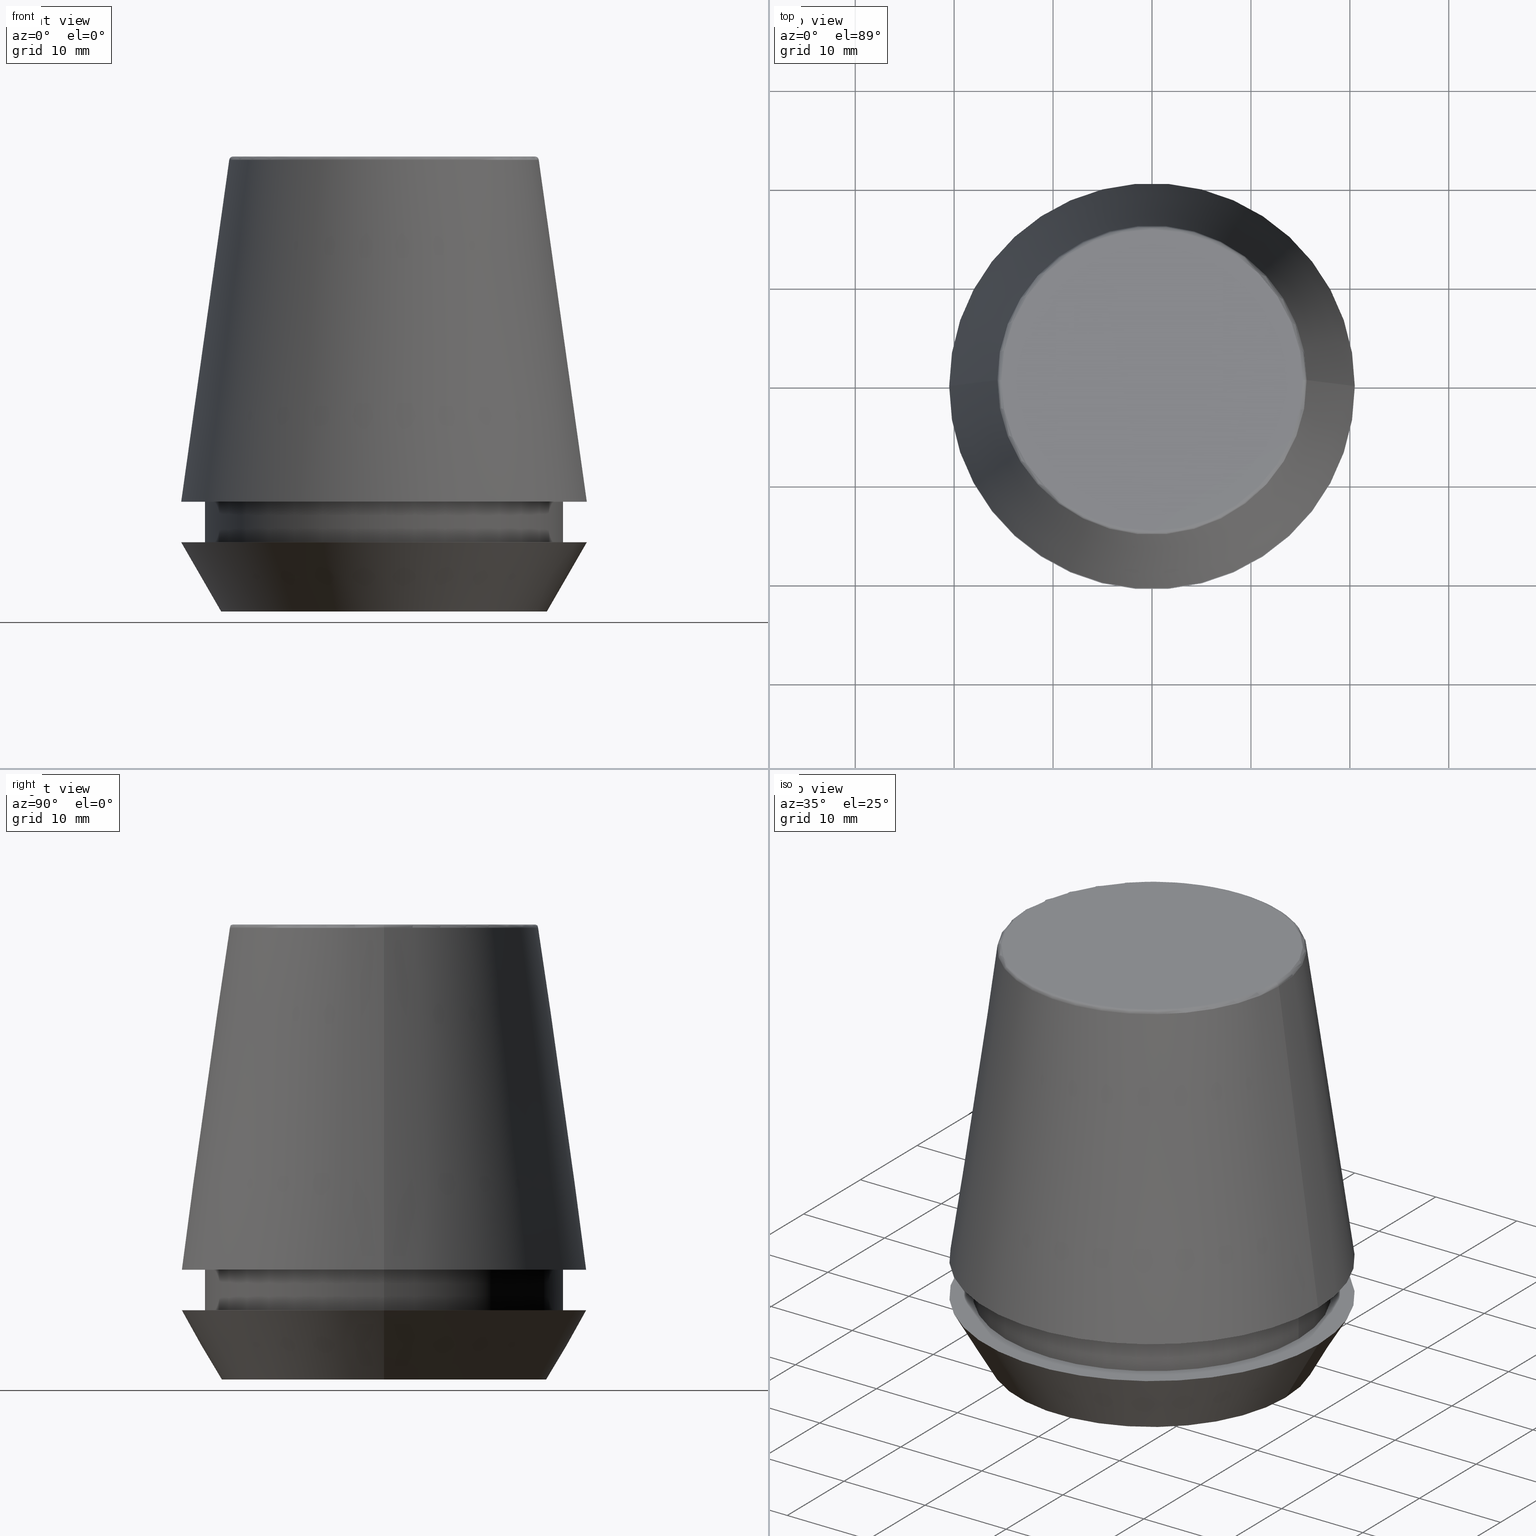
[diagram: canonical four-view strip — front | top / right | iso, engineering-drawing reading convention]
A machine part, canonical four-view strip (front | top / right | iso — engineering-drawing reading convention). The complete STEP part file that produces these views, byte-faithful:
ISO-10303-21;
HEADER;
FILE_DESCRIPTION (( 'STEP AP203' ),
    '1' );
FILE_NAME ('TAP COLLET ER 40G 4.5 X 3.4.STEP',
    '2019-04-10T03:21:59',
    ( '' ),
    ( '' ),
    'SwSTEP 2.0',
    'SolidWorks 2014',
    '' );
FILE_SCHEMA (( 'CONFIG_CONTROL_DESIGN' ));
ENDSEC;

DATA;
#1 =( NAMED_UNIT ( * ) PLANE_ANGLE_UNIT ( ) SI_UNIT ( $, .RADIAN. ) );
#2 = DIRECTION ( 'NONE',  ( -0.0000000000000000000, -0.0000000000000000000, 1.000000000000000000 ) ) ;
#3 = ORIENTED_EDGE ( 'NONE', *, *, #130, .F. ) ;
#4 = APPROVAL_STATUS ( 'not_yet_approved' ) ;
#5 = EDGE_LOOP ( 'NONE', ( #384, #336, #15, #3 ) ) ;
#6 = ORIENTED_EDGE ( 'NONE', *, *, #225, .F. ) ;
#7 = PERSON_AND_ORGANIZATION_ROLE ( 'classification_officer' ) ;
#8 = EDGE_CURVE ( 'NONE', #112, #253, #162, .T. ) ;
#9 = AXIS2_PLACEMENT_3D ( 'NONE', #222, #283, #252 ) ;
#10 = PERSON_AND_ORGANIZATION ( #307, #350 ) ;
#11 = ORIENTED_EDGE ( 'NONE', *, *, #182, .F. ) ;
#12 = FACE_OUTER_BOUND ( 'NONE', #85, .T. ) ;
#13 = ORIENTED_EDGE ( 'NONE', *, *, #72, .F. ) ;
#14 = AXIS2_PLACEMENT_3D ( 'NONE', #184, #382, #358 ) ;
#15 = ORIENTED_EDGE ( 'NONE', *, *, #333, .T. ) ;
#16 = DIRECTION ( 'NONE',  ( -0.1391731009600587200, 0.0000000000000000000, -0.9902680687415712500 ) ) ;
#17 = ADVANCED_FACE ( 'NONE', ( #167 ), #302, .T. ) ;
#18 = VERTEX_POINT ( 'NONE', #40 ) ;
#19 = AXIS2_PLACEMENT_3D ( 'NONE', #52, #351, #23 ) ;
#20 = ORIENTED_EDGE ( 'NONE', *, *, #58, .T. ) ;
#21 = CARTESIAN_POINT ( 'NONE',  ( -16.45854811567268100, 2.015590826847124800E-015, 0.0000000000000000000 ) ) ;
#22 = ADVANCED_FACE ( 'NONE', ( #27 ), #246, .T. ) ;
#23 = DIRECTION ( 'NONE',  ( 0.0000000000000000000, 0.0000000000000000000, -1.000000000000000000 ) ) ;
#24 = CARTESIAN_POINT ( 'NONE',  ( -15.24773554530077600, 1.891563625393435400E-015, 46.00000000000000000 ) ) ;
#25 = UNCERTAINTY_MEASURE_WITH_UNIT (LENGTH_MEASURE( 1.000000000000000100E-005 ), #30, 'distance_accuracy_value', 'NONE');
#26 = DESIGN_CONTEXT ( 'detailed design', #62, 'design' ) ;
#27 = FACE_OUTER_BOUND ( 'NONE', #341, .T. ) ;
#28 = EDGE_LOOP ( 'NONE', ( #94, #227 ) ) ;
#29 = DIRECTION ( 'NONE',  ( 1.000000000000000000, 0.0000000000000000000, 0.0000000000000000000 ) ) ;
#30 =( LENGTH_UNIT ( ) NAMED_UNIT ( * ) SI_UNIT ( .MILLI., .METRE. ) );
#31 = CIRCLE ( 'NONE', #19, 0.3999999999999975800 ) ;
#32 = AXIS2_PLACEMENT_3D ( 'NONE', #133, #315, #101 ) ;
#33 = PERSON_AND_ORGANIZATION_ROLE ( 'creator' ) ;
#34 = FACE_OUTER_BOUND ( 'NONE', #63, .T. ) ;
#35 = COORDINATED_UNIVERSAL_TIME_OFFSET ( 5, 30, .AHEAD. ) ;
#36 = LINE ( 'NONE', #77, #141 ) ;
#37 = AXIS2_PLACEMENT_3D ( 'NONE', #310, #198, #135 ) ;
#38 = FACE_OUTER_BOUND ( 'NONE', #5, .T. ) ;
#39 = VECTOR ( 'NONE', #233, 1000.000000000000000 ) ;
#40 = CARTESIAN_POINT ( 'NONE',  ( 15.64384277279740400, 2.213191991290356800E-015, 45.65566924038402900 ) ) ;
#41 = PERSON_AND_ORGANIZATION ( #307, #350 ) ;
#42 = DIRECTION ( 'NONE',  ( -1.000000000000000000, 0.0000000000000000000, -0.0000000000000000000 ) ) ;
#43 = AXIS2_PLACEMENT_3D ( 'NONE', #231, #54, #60 ) ;
#44 = DIRECTION ( 'NONE',  ( 0.0000000000000000000, 0.0000000000000000000, -1.000000000000000000 ) ) ;
#45 = DIRECTION ( 'NONE',  ( 1.000000000000000000, 0.0000000000000000000, 0.0000000000000000000 ) ) ;
#46 = DIRECTION ( 'NONE',  ( -0.0000000000000000000, -0.0000000000000000000, 1.000000000000000000 ) ) ;
#47 = DIRECTION ( 'NONE',  ( 1.000000000000000000, 0.0000000000000000000, 0.0000000000000000000 ) ) ;
#48 = FACE_BOUND ( 'NONE', #292, .T. ) ;
#49 = CARTESIAN_POINT ( 'NONE',  ( 0.0000000000000000000, 20.50032537154048700, 11.09999999999999800 ) ) ;
#50 = CARTESIAN_POINT ( 'NONE',  ( 18.10000000000000100, 0.0000000000000000000, 6.999999999999999100 ) ) ;
#51 = EDGE_CURVE ( 'NONE', #305, #273, #83, .T. ) ;
#52 = CARTESIAN_POINT ( 'NONE',  ( 15.24773554530077600, 0.0000000000000000000, 45.60000000000000100 ) ) ;
#53 = PRODUCT_DEFINITION_FORMATION_WITH_SPECIFIED_SOURCE ( 'ANY', '', #242, .NOT_KNOWN. ) ;
#54 = DIRECTION ( 'NONE',  ( -0.0000000000000000000, -0.0000000000000000000, 1.000000000000000000 ) ) ;
#55 = PLANE ( 'NONE',  #230 ) ;
#56 = CIRCLE ( 'NONE', #98, 18.10000000000000500 ) ;
#57 = EDGE_LOOP ( 'NONE', ( #154, #136, #241, #6 ) ) ;
#58 = EDGE_CURVE ( 'NONE', #305, #304, #228, .T. ) ;
#59 = APPROVAL ( #265, 'UNSPECIFIED' ) ;
#60 = DIRECTION ( 'NONE',  ( 1.000000000000000000, 0.0000000000000000000, 0.0000000000000000000 ) ) ;
#61 = EDGE_LOOP ( 'NONE', ( #205, #74, #68, #179 ) ) ;
#62 = APPLICATION_CONTEXT ( 'configuration controlled 3d designs of mechanical parts and assemblies' ) ;
#63 = EDGE_LOOP ( 'NONE', ( #322, #239 ) ) ;
#64 = PRODUCT_DEFINITION ( 'UNKNOWN', '', #53, #26 ) ;
#65 = CIRCLE ( 'NONE', #211, 16.45854811567268100 ) ;
#66 = FACE_BOUND ( 'NONE', #87, .T. ) ;
#67 = CIRCLE ( 'NONE', #104, 15.64384277279740400 ) ;
#68 = ORIENTED_EDGE ( 'NONE', *, *, #72, .T. ) ;
#69 = VECTOR ( 'NONE', #190, 1000.000000000000000 ) ;
#70 = CARTESIAN_POINT ( 'NONE',  ( 0.0000000000000000000, 0.0000000000000000000, 45.60000000000000100 ) ) ;
#71 = CARTESIAN_POINT ( 'NONE',  ( 0.0000000000000000000, 0.0000000000000000000, 11.09999999999999800 ) ) ;
#72 = EDGE_CURVE ( 'NONE', #96, #240, #295, .T. ) ;
#73 = CARTESIAN_POINT ( 'NONE',  ( 0.0000000000000000000, 0.0000000000000000000, 45.60000000000000100 ) ) ;
#74 = ORIENTED_EDGE ( 'NONE', *, *, #369, .T. ) ;
#75 = APPROVAL_DATE_TIME ( #166, #226 ) ;
#76 = ORIENTED_EDGE ( 'NONE', *, *, #114, .T. ) ;
#77 = CARTESIAN_POINT ( 'NONE',  ( 18.10000000000000500, 0.0000000000000000000, 46.00000000000000000 ) ) ;
#78 = CC_DESIGN_APPROVAL ( #106, ( #64 ) ) ;
#79 = DATE_AND_TIME ( #261, #175 ) ;
#80 = ADVANCED_FACE ( 'NONE', ( #38 ), #219, .T. ) ;
#81 = EDGE_CURVE ( 'NONE', #240, #96, #187, .T. ) ;
#82 = DIRECTION ( 'NONE',  ( 1.000000000000000000, 0.0000000000000000000, 0.0000000000000000000 ) ) ;
#83 = LINE ( 'NONE', #21, #69 ) ;
#84 = CARTESIAN_POINT ( 'NONE',  ( -18.10000000000000500, 2.216610706456710000E-015, 11.09999999999999800 ) ) ;
#85 = EDGE_LOOP ( 'NONE', ( #238, #151 ) ) ;
#86 = DIRECTION ( 'NONE',  ( 1.000000000000000000, 0.0000000000000000000, 0.0000000000000000000 ) ) ;
#87 = EDGE_LOOP ( 'NONE', ( #11, #93 ) ) ;
#88 = DATE_TIME_ROLE ( 'classification_date' ) ;
#89 = ADVANCED_BREP_SHAPE_REPRESENTATION ( 'TAP COLLET ER 40G 4.5 X 3.4', ( #149, #152 ), #326 ) ;
#90 = CALENDAR_DATE ( 2019, 10, 4 ) ;
#91 = AXIS2_PLACEMENT_3D ( 'NONE', #142, #110, #197 ) ;
#92 = CARTESIAN_POINT ( 'NONE',  ( -15.64384277279740400, 0.0000000000000000000, 45.65566924038402900 ) ) ;
#93 = ORIENTED_EDGE ( 'NONE', *, *, #113, .F. ) ;
#94 = ORIENTED_EDGE ( 'NONE', *, *, #164, .F. ) ;
#95 = ORIENTED_EDGE ( 'NONE', *, *, #159, .F. ) ;
#96 = VERTEX_POINT ( 'NONE', #132 ) ;
#97 = DIRECTION ( 'NONE',  ( -0.0000000000000000000, -0.0000000000000000000, 1.000000000000000000 ) ) ;
#98 = AXIS2_PLACEMENT_3D ( 'NONE', #103, #138, #317 ) ;
#99 = COORDINATED_UNIVERSAL_TIME_OFFSET ( 5, 30, .AHEAD. ) ;
#100 = DIRECTION ( 'NONE',  ( -0.0000000000000000000, -0.0000000000000000000, 1.000000000000000000 ) ) ;
#101 = DIRECTION ( 'NONE',  ( 1.000000000000000000, 0.0000000000000000000, 0.0000000000000000000 ) ) ;
#102 = ADVANCED_FACE ( 'NONE', ( #177 ), #327, .T. ) ;
#103 = CARTESIAN_POINT ( 'NONE',  ( 0.0000000000000000000, 0.0000000000000000000, 11.09999999999999800 ) ) ;
#104 = AXIS2_PLACEMENT_3D ( 'NONE', #249, #220, #82 ) ;
#105 = ORIENTED_EDGE ( 'NONE', *, *, #8, .F. ) ;
#106 = APPROVAL ( #4, 'UNSPECIFIED' ) ;
#107 = CARTESIAN_POINT ( 'NONE',  ( 16.45854811567268100, 0.0000000000000000000, 0.0000000000000000000 ) ) ;
#108 = FACE_OUTER_BOUND ( 'NONE', #181, .T. ) ;
#109 = CALENDAR_DATE ( 2019, 10, 4 ) ;
#110 = DIRECTION ( 'NONE',  ( -0.0000000000000000000, -0.0000000000000000000, 1.000000000000000000 ) ) ;
#111 = CIRCLE ( 'NONE', #236, 18.10000000000000500 ) ;
#112 = VERTEX_POINT ( 'NONE', #216 ) ;
#113 = EDGE_CURVE ( 'NONE', #255, #191, #160, .T. ) ;
#114 = EDGE_CURVE ( 'NONE', #224, #240, #357, .T. ) ;
#115 = ADVANCED_FACE ( 'NONE', ( #66, #12 ), #311, .F. ) ;
#116 = DIRECTION ( 'NONE',  ( -0.0000000000000000000, -0.0000000000000000000, 1.000000000000000000 ) ) ;
#117 = EDGE_LOOP ( 'NONE', ( #214, #270, #95, #173 ) ) ;
#118 = LINE ( 'NONE', #139, #372 ) ;
#119 = DIRECTION ( 'NONE',  ( 1.000000000000000000, 0.0000000000000000000, 0.0000000000000000000 ) ) ;
#120 = CARTESIAN_POINT ( 'NONE',  ( 0.0000000000000000000, 0.0000000000000000000, 0.0000000000000000000 ) ) ;
#121 = APPROVAL_ROLE ( '' ) ;
#122 = FACE_OUTER_BOUND ( 'NONE', #28, .T. ) ;
#123 = COORDINATED_UNIVERSAL_TIME_OFFSET ( 5, 30, .AHEAD. ) ;
#124 = DIRECTION ( 'NONE',  ( -0.0000000000000000000, -0.0000000000000000000, 1.000000000000000000 ) ) ;
#125 = DIRECTION ( 'NONE',  ( -0.0000000000000000000, -0.0000000000000000000, 1.000000000000000000 ) ) ;
#126 = CC_DESIGN_PERSON_AND_ORGANIZATION_ASSIGNMENT ( #356, #33, ( #64 ) ) ;
#127 = CIRCLE ( 'NONE', #272, 18.10000000000000100 ) ;
#128 = DIRECTION ( 'NONE',  ( -0.0000000000000000000, -0.0000000000000000000, 1.000000000000000000 ) ) ;
#129 = ORIENTED_EDGE ( 'NONE', *, *, #137, .T. ) ;
#130 = EDGE_CURVE ( 'NONE', #290, #306, #111, .T. ) ;
#131 = DIRECTION ( 'NONE',  ( 1.000000000000000000, 0.0000000000000000000, 0.0000000000000000000 ) ) ;
#132 = CARTESIAN_POINT ( 'NONE',  ( 20.50032537154048700, 2.510565784773633700E-015, 11.09999999999999800 ) ) ;
#133 = CARTESIAN_POINT ( 'NONE',  ( 0.0000000000000000000, 0.0000000000000000000, 0.0000000000000000000 ) ) ;
#134 = AXIS2_PLACEMENT_3D ( 'NONE', #215, #44, #316 ) ;
#135 = DIRECTION ( 'NONE',  ( -1.000000000000000000, 0.0000000000000000000, 0.0000000000000000000 ) ) ;
#136 = ORIENTED_EDGE ( 'NONE', *, *, #210, .T. ) ;
#137 = EDGE_CURVE ( 'NONE', #18, #224, #67, .T. ) ;
#138 = DIRECTION ( 'NONE',  ( -0.0000000000000000000, -0.0000000000000000000, 1.000000000000000000 ) ) ;
#139 = CARTESIAN_POINT ( 'NONE',  ( 20.50032537154048700, 2.510565784773633700E-015, 11.09999999999999800 ) ) ;
#140 = DIRECTION ( 'NONE',  ( -0.0000000000000000000, -0.0000000000000000000, 1.000000000000000000 ) ) ;
#141 = VECTOR ( 'NONE', #291, 1000.000000000000000 ) ;
#142 = CARTESIAN_POINT ( 'NONE',  ( 0.0000000000000000000, 0.0000000000000000000, 46.00000000000000000 ) ) ;
#143 = EDGE_LOOP ( 'NONE', ( #129, #163, #105, #148 ) ) ;
#144 = ORIENTED_EDGE ( 'NONE', *, *, #130, .T. ) ;
#145 = DATE_TIME_ROLE ( 'creation_date' ) ;
#146 = DIRECTION ( 'NONE',  ( 0.0000000000000000000, -0.0000000000000000000, 1.000000000000000000 ) ) ;
#147 = DIRECTION ( 'NONE',  ( 1.000000000000000000, 0.0000000000000000000, 0.0000000000000000000 ) ) ;
#148 = ORIENTED_EDGE ( 'NONE', *, *, #344, .F. ) ;
#149 = MANIFOLD_SOLID_BREP ( 'Revolve1', #308 ) ;
#150 = SECURITY_CLASSIFICATION_LEVEL ( 'unclassified' ) ;
#151 = ORIENTED_EDGE ( 'NONE', *, *, #303, .T. ) ;
#152 = AXIS2_PLACEMENT_3D ( 'NONE', #359, #348, #147 ) ;
#153 = DIRECTION ( 'NONE',  ( 1.000000000000000000, 0.0000000000000000000, 0.0000000000000000000 ) ) ;
#154 = ORIENTED_EDGE ( 'NONE', *, *, #178, .F. ) ;
#155 = EDGE_CURVE ( 'NONE', #188, #273, #379, .T. ) ;
#156 = CARTESIAN_POINT ( 'NONE',  ( 0.0000000000000000000, 0.0000000000000000000, 6.999999999999999100 ) ) ;
#157 = AXIS2_PLACEMENT_3D ( 'NONE', #70, #342, #245 ) ;
#158 = APPROVAL_PERSON_ORGANIZATION ( #200, #226, #204 ) ;
#159 = EDGE_CURVE ( 'NONE', #306, #290, #56, .T. ) ;
#160 = CIRCLE ( 'NONE', #258, 18.10000000000000100 ) ;
#161 = CARTESIAN_POINT ( 'NONE',  ( 0.0000000000000000000, 0.0000000000000000000, 0.0000000000000000000 ) ) ;
#162 = CIRCLE ( 'NONE', #207, 15.24773554530077600 ) ;
#163 = ORIENTED_EDGE ( 'NONE', *, *, #178, .T. ) ;
#164 = EDGE_CURVE ( 'NONE', #304, #305, #65, .T. ) ;
#165 = CC_DESIGN_APPROVAL ( #226, ( #176 ) ) ;
#166 = DATE_AND_TIME ( #90, #335 ) ;
#167 = FACE_OUTER_BOUND ( 'NONE', #61, .T. ) ;
#168 = CC_DESIGN_APPROVAL ( #59, ( #53 ) ) ;
#169 = CARTESIAN_POINT ( 'NONE',  ( -20.50032537154048700, 0.0000000000000000000, 11.09999999999999800 ) ) ;
#170 = CARTESIAN_POINT ( 'NONE',  ( 0.0000000000000000000, 0.0000000000000000000, 45.65566924038402900 ) ) ;
#171 = ORIENTED_EDGE ( 'NONE', *, *, #159, .T. ) ;
#172 = CARTESIAN_POINT ( 'NONE',  ( -18.10000000000000500, 2.216610706456710000E-015, 46.00000000000000000 ) ) ;
#173 = ORIENTED_EDGE ( 'NONE', *, *, #333, .F. ) ;
#174 = MECHANICAL_CONTEXT ( 'NONE', #294, 'mechanical' ) ;
#175 = LOCAL_TIME ( 8, 51, 59.00000000000000000, #35 ) ;
#176 = SECURITY_CLASSIFICATION ( '', '', #150 ) ;
#177 = FACE_OUTER_BOUND ( 'NONE', #57, .T. ) ;
#178 = EDGE_CURVE ( 'NONE', #224, #253, #364, .T. ) ;
#179 = ORIENTED_EDGE ( 'NONE', *, *, #114, .F. ) ;
#180 = PERSON_AND_ORGANIZATION ( #307, #350 ) ;
#181 = EDGE_LOOP ( 'NONE', ( #232, #20, #289, #209 ) ) ;
#182 = EDGE_CURVE ( 'NONE', #191, #255, #127, .T. ) ;
#183 = AXIS2_PLACEMENT_3D ( 'NONE', #361, #293, #329 ) ;
#184 = CARTESIAN_POINT ( 'NONE',  ( 0.0000000000000000000, 0.0000000000000000000, 7.000000000000006200 ) ) ;
#185 = CONICAL_SURFACE ( 'NONE', #334, 16.45854811567268100, 0.5235987755982921500 ) ;
#186 = APPROVAL_DATE_TIME ( #345, #106 ) ;
#187 = CIRCLE ( 'NONE', #301, 20.50032537154048700 ) ;
#188 = VERTEX_POINT ( 'NONE', #195 ) ;
#189 = DIRECTION ( 'NONE',  ( 1.000000000000000000, 0.0000000000000000000, 0.0000000000000000000 ) ) ;
#190 = DIRECTION ( 'NONE',  ( -0.4999999999999941700, 6.123233995736694500E-017, 0.8660254037844420400 ) ) ;
#191 = VERTEX_POINT ( 'NONE', #50 ) ;
#192 = CC_DESIGN_SECURITY_CLASSIFICATION ( #176, ( #53 ) ) ;
#193 = DIRECTION ( 'NONE',  ( 1.000000000000000000, 0.0000000000000000000, 0.0000000000000000000 ) ) ;
#194 = DIRECTION ( 'NONE',  ( 1.000000000000000000, 0.0000000000000000000, 0.0000000000000000000 ) ) ;
#195 = CARTESIAN_POINT ( 'NONE',  ( 20.50000000000000000, 0.0000000000000000000, 7.000000000000006200 ) ) ;
#196 = CIRCLE ( 'NONE', #43, 15.24773554530077600 ) ;
#197 = DIRECTION ( 'NONE',  ( 1.000000000000000000, 0.0000000000000000000, 0.0000000000000000000 ) ) ;
#198 = DIRECTION ( 'NONE',  ( 0.0000000000000000000, 0.0000000000000000000, -1.000000000000000000 ) ) ;
#199 = CC_DESIGN_PERSON_AND_ORGANIZATION_ASSIGNMENT ( #313, #7, ( #176 ) ) ;
#200 = PERSON_AND_ORGANIZATION ( #307, #350 ) ;
#201 = APPLICATION_PROTOCOL_DEFINITION ( 'international standard', 'config_control_design', 1994, #62 ) ;
#202 = CIRCLE ( 'NONE', #309, 15.64384277279740400 ) ;
#203 = CC_DESIGN_DATE_AND_TIME_ASSIGNMENT ( #237, #88, ( #176 ) ) ;
#204 = APPROVAL_ROLE ( '' ) ;
#205 = ORIENTED_EDGE ( 'NONE', *, *, #137, .F. ) ;
#206 = CARTESIAN_POINT ( 'NONE',  ( 18.10000000000000500, 0.0000000000000000000, 11.09999999999999800 ) ) ;
#207 = AXIS2_PLACEMENT_3D ( 'NONE', #267, #125, #45 ) ;
#208 = ORIENTED_EDGE ( 'NONE', *, *, #51, .T. ) ;
#209 = ORIENTED_EDGE ( 'NONE', *, *, #303, .F. ) ;
#210 = EDGE_CURVE ( 'NONE', #224, #18, #202, .T. ) ;
#211 = AXIS2_PLACEMENT_3D ( 'NONE', #161, #377, #193 ) ;
#212 = FACE_OUTER_BOUND ( 'NONE', #117, .T. ) ;
#213 = ORIENTED_EDGE ( 'NONE', *, *, #81, .F. ) ;
#214 = ORIENTED_EDGE ( 'NONE', *, *, #182, .T. ) ;
#215 = CARTESIAN_POINT ( 'NONE',  ( 0.0000000000000000000, 0.0000000000000000000, 11.09999999999999800 ) ) ;
#216 = CARTESIAN_POINT ( 'NONE',  ( 15.24773554530077600, 0.0000000000000000000, 46.00000000000000000 ) ) ;
#217 = AXIS2_PLACEMENT_3D ( 'NONE', #374, #46, #281 ) ;
#218 = COORDINATED_UNIVERSAL_TIME_OFFSET ( 5, 30, .AHEAD. ) ;
#219 = CYLINDRICAL_SURFACE ( 'NONE', #217, 18.10000000000000500 ) ;
#220 = DIRECTION ( 'NONE',  ( -0.0000000000000000000, -0.0000000000000000000, 1.000000000000000000 ) ) ;
#221 = ADVANCED_FACE ( 'NONE', ( #340 ), #284, .T. ) ;
#222 = CARTESIAN_POINT ( 'NONE',  ( -15.24773554530077600, 1.867309052979791600E-015, 45.60000000000000100 ) ) ;
#223 = PLANE ( 'NONE',  #367 ) ;
#224 = VERTEX_POINT ( 'NONE', #92 ) ;
#225 = EDGE_CURVE ( 'NONE', #253, #112, #196, .T. ) ;
#226 = APPROVAL ( #332, 'UNSPECIFIED' ) ;
#227 = ORIENTED_EDGE ( 'NONE', *, *, #58, .F. ) ;
#228 = CIRCLE ( 'NONE', #32, 16.45854811567268100 ) ;
#229 = CALENDAR_DATE ( 2019, 10, 4 ) ;
#230 = AXIS2_PLACEMENT_3D ( 'NONE', #354, #254, #287 ) ;
#231 = CARTESIAN_POINT ( 'NONE',  ( 0.0000000000000000000, 0.0000000000000000000, 46.00000000000000000 ) ) ;
#232 = ORIENTED_EDGE ( 'NONE', *, *, #51, .F. ) ;
#233 = DIRECTION ( 'NONE',  ( -0.0000000000000000000, -0.0000000000000000000, 1.000000000000000000 ) ) ;
#234 = ORIENTED_EDGE ( 'NONE', *, *, #155, .F. ) ;
#235 = APPROVAL_ROLE ( '' ) ;
#236 = AXIS2_PLACEMENT_3D ( 'NONE', #337, #128, #47 ) ;
#237 = DATE_AND_TIME ( #229, #325 ) ;
#238 = ORIENTED_EDGE ( 'NONE', *, *, #155, .T. ) ;
#239 = ORIENTED_EDGE ( 'NONE', *, *, #225, .T. ) ;
#240 = VERTEX_POINT ( 'NONE', #169 ) ;
#241 = ORIENTED_EDGE ( 'NONE', *, *, #344, .T. ) ;
#242 = PRODUCT ( 'TAP COLLET ER 40G 4.5 X 3.4', 'TAP COLLET ER 40G 4.5 X 3.4', '', ( #174 ) ) ;
#243 = ADVANCED_FACE ( 'NONE', ( #276 ), #185, .T. ) ;
#244 = DIRECTION ( 'NONE',  ( 0.0000000000000000000, 0.0000000000000000000, -1.000000000000000000 ) ) ;
#245 = DIRECTION ( 'NONE',  ( 1.000000000000000000, 0.0000000000000000000, 0.0000000000000000000 ) ) ;
#246 = CONICAL_SURFACE ( 'NONE', #37, 20.50032537154048700, 0.1396263401595396200 ) ;
#247 = DIRECTION ( 'NONE',  ( -0.0000000000000000000, -0.0000000000000000000, 1.000000000000000000 ) ) ;
#248 = CC_DESIGN_PERSON_AND_ORGANIZATION_ASSIGNMENT ( #383, #362, ( #242 ) ) ;
#249 = CARTESIAN_POINT ( 'NONE',  ( 0.0000000000000000000, 0.0000000000000000000, 45.65566924038402900 ) ) ;
#250 = AXIS2_PLACEMENT_3D ( 'NONE', #120, #146, #119 ) ;
#251 = APPROVAL_PERSON_ORGANIZATION ( #339, #59, #121 ) ;
#252 = DIRECTION ( 'NONE',  ( -1.000000000000000000, 1.224646799147353900E-016, 0.0000000000000000000 ) ) ;
#253 = VERTEX_POINT ( 'NONE', #24 ) ;
#254 = DIRECTION ( 'NONE',  ( 0.0000000000000000000, 0.0000000000000000000, -1.000000000000000000 ) ) ;
#255 = VERTEX_POINT ( 'NONE', #331 ) ;
#256 = CALENDAR_DATE ( 2019, 10, 4 ) ;
#257 = APPROVAL_PERSON_ORGANIZATION ( #41, #106, #235 ) ;
#258 = AXIS2_PLACEMENT_3D ( 'NONE', #156, #97, #131 ) ;
#259 = ADVANCED_FACE ( 'NONE', ( #122 ), #381, .F. ) ;
#260 = CARTESIAN_POINT ( 'NONE',  ( -20.50000000000000000, 2.510525938252074100E-015, 7.000000000000006200 ) ) ;
#261 = CALENDAR_DATE ( 2019, 10, 4 ) ;
#262 = CARTESIAN_POINT ( 'NONE',  ( 16.45854811567268100, 0.0000000000000000000, 0.0000000000000000000 ) ) ;
#263 = ORIENTED_EDGE ( 'NONE', *, *, #319, .F. ) ;
#264 =( NAMED_UNIT ( * ) SI_UNIT ( $, .STERADIAN. ) SOLID_ANGLE_UNIT ( ) );
#265 = APPROVAL_STATUS ( 'not_yet_approved' ) ;
#266 = PRODUCT_RELATED_PRODUCT_CATEGORY ( 'detail', '', ( #242 ) ) ;
#267 = CARTESIAN_POINT ( 'NONE',  ( 0.0000000000000000000, 0.0000000000000000000, 46.00000000000000000 ) ) ;
#268 = LINE ( 'NONE', #172, #39 ) ;
#269 = COORDINATED_UNIVERSAL_TIME_OFFSET ( 5, 30, .AHEAD. ) ;
#270 = ORIENTED_EDGE ( 'NONE', *, *, #286, .T. ) ;
#271 = APPROVAL_DATE_TIME ( #79, #59 ) ;
#272 = AXIS2_PLACEMENT_3D ( 'NONE', #321, #140, #153 ) ;
#273 = VERTEX_POINT ( 'NONE', #260 ) ;
#274 = LOCAL_TIME ( 8, 51, 59.00000000000000000, #269 ) ;
#275 = CC_DESIGN_PERSON_AND_ORGANIZATION_ASSIGNMENT ( #180, #365, ( #53 ) ) ;
#276 = FACE_OUTER_BOUND ( 'NONE', #387, .T. ) ;
#277 = CARTESIAN_POINT ( 'NONE',  ( 0.0000000000000000000, 20.50000000000000000, 7.000000000000002700 ) ) ;
#278 = ADVANCED_FACE ( 'NONE', ( #108 ), #338, .T. ) ;
#279 = DIRECTION ( 'NONE',  ( 1.000000000000000000, 0.0000000000000000000, 0.0000000000000000000 ) ) ;
#280 = AXIS2_PLACEMENT_3D ( 'NONE', #71, #247, #189 ) ;
#281 = DIRECTION ( 'NONE',  ( 1.000000000000000000, 0.0000000000000000000, 0.0000000000000000000 ) ) ;
#282 = DATE_AND_TIME ( #256, #274 ) ;
#283 = DIRECTION ( 'NONE',  ( 1.224646799147353200E-016, 1.000000000000000000, 0.0000000000000000000 ) ) ;
#284 = TOROIDAL_SURFACE ( 'NONE', #360, 15.24773554530077600, 0.3999999999999991900 ) ;
#285 = CYLINDRICAL_SURFACE ( 'NONE', #91, 18.10000000000000500 ) ;
#286 = EDGE_CURVE ( 'NONE', #255, #290, #268, .T. ) ;
#287 = DIRECTION ( 'NONE',  ( -1.000000000000000000, 0.0000000000000000000, -0.0000000000000000000 ) ) ;
#288 = AXIS2_PLACEMENT_3D ( 'NONE', #296, #2, #86 ) ;
#289 = ORIENTED_EDGE ( 'NONE', *, *, #319, .T. ) ;
#290 = VERTEX_POINT ( 'NONE', #84 ) ;
#291 = DIRECTION ( 'NONE',  ( -0.0000000000000000000, -0.0000000000000000000, 1.000000000000000000 ) ) ;
#292 = EDGE_LOOP ( 'NONE', ( #171, #144 ) ) ;
#293 = DIRECTION ( 'NONE',  ( -0.0000000000000000000, -0.0000000000000000000, 1.000000000000000000 ) ) ;
#294 = APPLICATION_CONTEXT ( 'configuration controlled 3d designs of mechanical parts and assemblies' ) ;
#295 = CIRCLE ( 'NONE', #280, 20.50032537154048700 ) ;
#296 = CARTESIAN_POINT ( 'NONE',  ( 0.0000000000000000000, 0.0000000000000000000, 7.000000000000006200 ) ) ;
#297 = FACE_OUTER_BOUND ( 'NONE', #328, .T. ) ;
#298 = PERSON_AND_ORGANIZATION_ROLE ( 'creator' ) ;
#299 = PRODUCT_DEFINITION_SHAPE ( 'NONE', 'NONE',  #64 ) ;
#300 = DIRECTION ( 'NONE',  ( -0.0000000000000000000, -0.0000000000000000000, 1.000000000000000000 ) ) ;
#301 = AXIS2_PLACEMENT_3D ( 'NONE', #312, #100, #279 ) ;
#302 = CONICAL_SURFACE ( 'NONE', #134, 20.50032537154048700, 0.1396263401595396200 ) ;
#303 = EDGE_CURVE ( 'NONE', #273, #188, #371, .T. ) ;
#304 = VERTEX_POINT ( 'NONE', #262 ) ;
#305 = VERTEX_POINT ( 'NONE', #363 ) ;
#306 = VERTEX_POINT ( 'NONE', #206 ) ;
#307 = PERSON ( 'UNSPECIFIED', 'UNSPECIFIED', 'UNSPECIFIED', ('UNSPECIFIED'), ('UNSPECIFIED'), ('UNSPECIFIED') ) ;
#308 = CLOSED_SHELL ( 'NONE', ( #221, #17, #343, #243, #259, #278, #115, #80, #352, #22, #102, #318 ) ) ;
#309 = AXIS2_PLACEMENT_3D ( 'NONE', #170, #116, #353 ) ;
#310 = CARTESIAN_POINT ( 'NONE',  ( 0.0000000000000000000, 0.0000000000000000000, 11.09999999999999800 ) ) ;
#311 = PLANE ( 'NONE',  #376 ) ;
#312 = CARTESIAN_POINT ( 'NONE',  ( 0.0000000000000000000, 0.0000000000000000000, 11.09999999999999800 ) ) ;
#313 = PERSON_AND_ORGANIZATION ( #307, #350 ) ;
#314 = LOCAL_TIME ( 8, 51, 59.00000000000000000, #123 ) ;
#315 = DIRECTION ( 'NONE',  ( -0.0000000000000000000, -0.0000000000000000000, 1.000000000000000000 ) ) ;
#316 = DIRECTION ( 'NONE',  ( -1.000000000000000000, 0.0000000000000000000, 0.0000000000000000000 ) ) ;
#317 = DIRECTION ( 'NONE',  ( 1.000000000000000000, 0.0000000000000000000, 0.0000000000000000000 ) ) ;
#318 = ADVANCED_FACE ( 'NONE', ( #34 ), #55, .F. ) ;
#319 = EDGE_CURVE ( 'NONE', #304, #188, #349, .T. ) ;
#320 = CC_DESIGN_DATE_AND_TIME_ASSIGNMENT ( #282, #145, ( #64 ) ) ;
#321 = CARTESIAN_POINT ( 'NONE',  ( 0.0000000000000000000, 0.0000000000000000000, 6.999999999999999100 ) ) ;
#322 = ORIENTED_EDGE ( 'NONE', *, *, #8, .T. ) ;
#323 = ORIENTED_EDGE ( 'NONE', *, *, #164, .T. ) ;
#324 = DIRECTION ( 'NONE',  ( 0.4999999999999941700, 0.0000000000000000000, 0.8660254037844420400 ) ) ;
#325 = LOCAL_TIME ( 8, 51, 59.00000000000000000, #218 ) ;
#326 =( GEOMETRIC_REPRESENTATION_CONTEXT ( 3 ) GLOBAL_UNCERTAINTY_ASSIGNED_CONTEXT ( ( #25 ) ) GLOBAL_UNIT_ASSIGNED_CONTEXT ( ( #30, #1, #264 ) ) REPRESENTATION_CONTEXT ( 'NONE', 'WORKASPACE' ) );
#327 = TOROIDAL_SURFACE ( 'NONE', #157, 15.24773554530077600, 0.3999999999999991900 ) ;
#328 = EDGE_LOOP ( 'NONE', ( #213, #13 ) ) ;
#329 = DIRECTION ( 'NONE',  ( 1.000000000000000000, 0.0000000000000000000, 0.0000000000000000000 ) ) ;
#330 = APPLICATION_PROTOCOL_DEFINITION ( 'international standard', 'config_control_design', 1994, #294 ) ;
#331 = CARTESIAN_POINT ( 'NONE',  ( -18.10000000000000100, 2.216610706456709600E-015, 6.999999999999999100 ) ) ;
#332 = APPROVAL_STATUS ( 'not_yet_approved' ) ;
#333 = EDGE_CURVE ( 'NONE', #191, #306, #36, .T. ) ;
#334 = AXIS2_PLACEMENT_3D ( 'NONE', #368, #300, #29 ) ;
#335 = LOCAL_TIME ( 8, 51, 59.00000000000000000, #99 ) ;
#336 = ORIENTED_EDGE ( 'NONE', *, *, #113, .T. ) ;
#337 = CARTESIAN_POINT ( 'NONE',  ( 0.0000000000000000000, 0.0000000000000000000, 11.09999999999999800 ) ) ;
#338 = CONICAL_SURFACE ( 'NONE', #183, 16.45854811567268100, 0.5235987755982921500 ) ;
#339 = PERSON_AND_ORGANIZATION ( #307, #350 ) ;
#340 = FACE_OUTER_BOUND ( 'NONE', #143, .T. ) ;
#341 = EDGE_LOOP ( 'NONE', ( #386, #366, #76, #375 ) ) ;
#342 = DIRECTION ( 'NONE',  ( -0.0000000000000000000, -0.0000000000000000000, 1.000000000000000000 ) ) ;
#343 = ADVANCED_FACE ( 'NONE', ( #212 ), #285, .T. ) ;
#344 = EDGE_CURVE ( 'NONE', #18, #112, #31, .T. ) ;
#345 = DATE_AND_TIME ( #109, #314 ) ;
#346 = VECTOR ( 'NONE', #16, 1000.000000000000000 ) ;
#347 = DIRECTION ( 'NONE',  ( 0.0000000000000000000, -0.0000000000000000000, 1.000000000000000000 ) ) ;
#348 = DIRECTION ( 'NONE',  ( 0.0000000000000000000, 0.0000000000000000000, 1.000000000000000000 ) ) ;
#349 = LINE ( 'NONE', #107, #380 ) ;
#350 = ORGANIZATION ( 'UNSPECIFIED', 'UNSPECIFIED', '' ) ;
#351 = DIRECTION ( 'NONE',  ( 0.0000000000000000000, -1.000000000000000000, 0.0000000000000000000 ) ) ;
#352 = ADVANCED_FACE ( 'NONE', ( #297, #48 ), #223, .F. ) ;
#353 = DIRECTION ( 'NONE',  ( 1.000000000000000000, 0.0000000000000000000, 0.0000000000000000000 ) ) ;
#354 = CARTESIAN_POINT ( 'NONE',  ( 0.0000000000000000000, 15.24773554530077600, 46.00000000000000000 ) ) ;
#355 = DIRECTION ( 'NONE',  ( 1.000000000000000000, 0.0000000000000000000, 0.0000000000000000000 ) ) ;
#356 = PERSON_AND_ORGANIZATION ( #307, #350 ) ;
#357 = LINE ( 'NONE', #373, #346 ) ;
#358 = DIRECTION ( 'NONE',  ( 1.000000000000000000, 0.0000000000000000000, 0.0000000000000000000 ) ) ;
#359 = CARTESIAN_POINT ( 'NONE',  ( 0.0000000000000000000, 0.0000000000000000000, 0.0000000000000000000 ) ) ;
#360 = AXIS2_PLACEMENT_3D ( 'NONE', #73, #124, #355 ) ;
#361 = CARTESIAN_POINT ( 'NONE',  ( 0.0000000000000000000, 0.0000000000000000000, 0.0000000000000000000 ) ) ;
#362 = PERSON_AND_ORGANIZATION_ROLE ( 'design_owner' ) ;
#363 = CARTESIAN_POINT ( 'NONE',  ( -16.45854811567268100, 2.263058382549599700E-015, 0.0000000000000000000 ) ) ;
#364 = CIRCLE ( 'NONE', #9, 0.3999999999999975800 ) ;
#365 = PERSON_AND_ORGANIZATION_ROLE ( 'design_supplier' ) ;
#366 = ORIENTED_EDGE ( 'NONE', *, *, #210, .F. ) ;
#367 = AXIS2_PLACEMENT_3D ( 'NONE', #49, #347, #194 ) ;
#368 = CARTESIAN_POINT ( 'NONE',  ( 0.0000000000000000000, 0.0000000000000000000, 0.0000000000000000000 ) ) ;
#369 = EDGE_CURVE ( 'NONE', #18, #96, #118, .T. ) ;
#370 = SHAPE_DEFINITION_REPRESENTATION ( #299, #89 ) ;
#371 = CIRCLE ( 'NONE', #288, 20.50000000000000000 ) ;
#372 = VECTOR ( 'NONE', #385, 1000.000000000000000 ) ;
#373 = CARTESIAN_POINT ( 'NONE',  ( -20.50032537154048700, 0.0000000000000000000, 11.09999999999999800 ) ) ;
#374 = CARTESIAN_POINT ( 'NONE',  ( 0.0000000000000000000, 0.0000000000000000000, 46.00000000000000000 ) ) ;
#375 = ORIENTED_EDGE ( 'NONE', *, *, #81, .T. ) ;
#376 = AXIS2_PLACEMENT_3D ( 'NONE', #277, #244, #42 ) ;
#377 = DIRECTION ( 'NONE',  ( -0.0000000000000000000, -0.0000000000000000000, 1.000000000000000000 ) ) ;
#378 = CC_DESIGN_PERSON_AND_ORGANIZATION_ASSIGNMENT ( #10, #298, ( #53 ) ) ;
#379 = CIRCLE ( 'NONE', #14, 20.50000000000000000 ) ;
#380 = VECTOR ( 'NONE', #324, 1000.000000000000000 ) ;
#381 = PLANE ( 'NONE',  #250 ) ;
#382 = DIRECTION ( 'NONE',  ( -0.0000000000000000000, -0.0000000000000000000, 1.000000000000000000 ) ) ;
#383 = PERSON_AND_ORGANIZATION ( #307, #350 ) ;
#384 = ORIENTED_EDGE ( 'NONE', *, *, #286, .F. ) ;
#385 = DIRECTION ( 'NONE',  ( 0.1391731009600587200, 1.704378926181473400E-017, -0.9902680687415712500 ) ) ;
#386 = ORIENTED_EDGE ( 'NONE', *, *, #369, .F. ) ;
#387 = EDGE_LOOP ( 'NONE', ( #323, #208, #234, #263 ) ) ;
ENDSEC;
END-ISO-10303-21;
